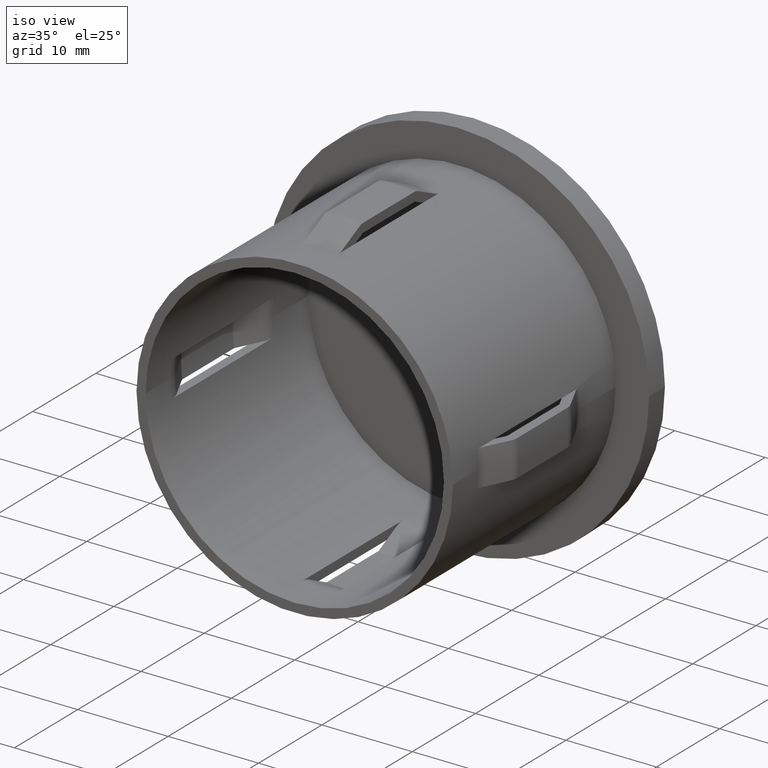
[diagram: clean part render]
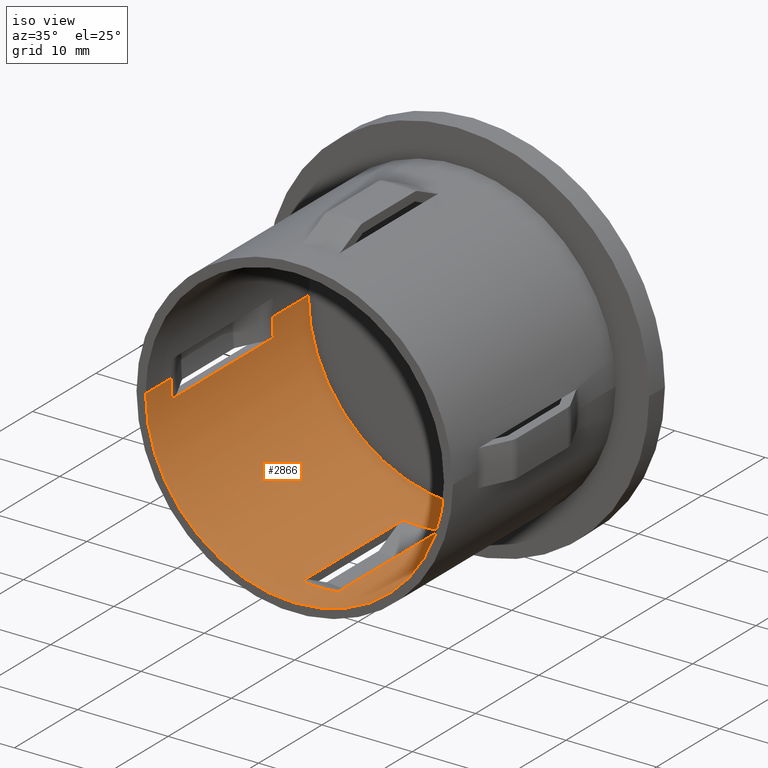
[diagram: same view with one face highlighted and labeled with its STEP entity id]
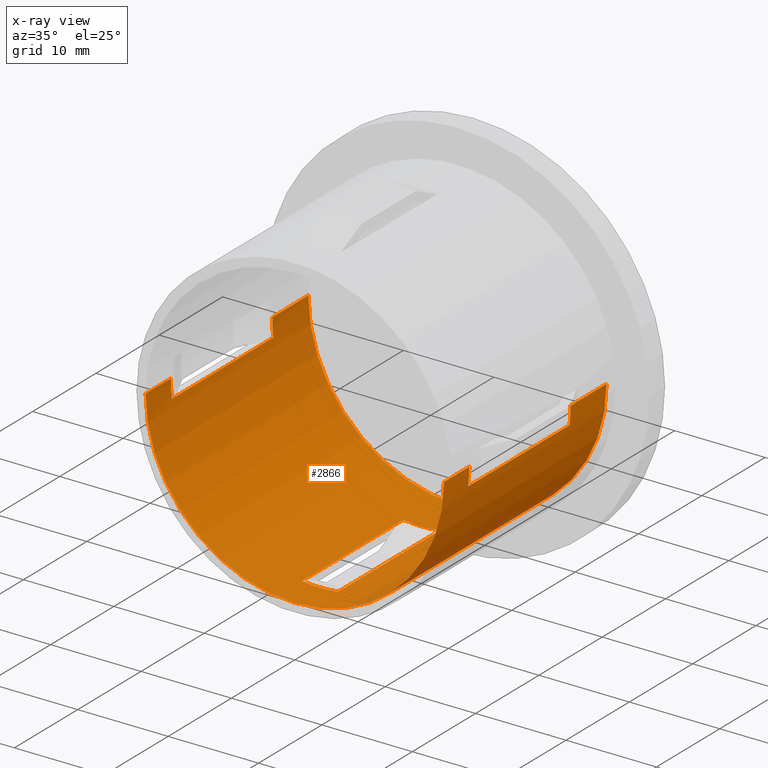
[diagram: x-ray of the same camera — body ghosted, the highlighted face saturated]
A machine part, iso view. The second image highlights one B-rep face of the part: STEP entity #2866.
The next image is the same camera in x-ray: the body ghosted, the highlighted face saturated — about 0% of this face is hidden behind the body in this view.
In plain terms, the highlighted cylindrical surface (partial cylindrical patch) has radius 16.5 mm, axis along (-0, 1, -0).
Its self-contained STEP definition (entity closure, byte-faithful):
#119 = VERTEX_POINT ( 'NONE', #7602 ) ;
#134 = ORIENTED_EDGE ( 'NONE', *, *, #6629, .T. ) ;
#135 = VECTOR ( 'NONE', #7212, 1000.000000000000000 ) ;
#142 = AXIS2_PLACEMENT_3D ( 'NONE', #4203, #6331, #5242 ) ;
#244 = CARTESIAN_POINT ( 'NONE',  ( -16.37833935415919800, 3.999999999999994200, -1.999999999999999600 ) ) ;
#255 = VERTEX_POINT ( 'NONE', #12263 ) ;
#303 = ORIENTED_EDGE ( 'NONE', *, *, #10717, .T. ) ;
#552 = ORIENTED_EDGE ( 'NONE', *, *, #8634, .F. ) ;
#663 = DIRECTION ( 'NONE',  ( -1.714505518806297100E-016, 1.000000000000000000, -0.0000000000000000000 ) ) ;
#673 = DIRECTION ( 'NONE',  ( -1.714505518806297100E-016, 1.000000000000000000, -0.0000000000000000000 ) ) ;
#878 = ORIENTED_EDGE ( 'NONE', *, *, #1336, .F. ) ;
#889 = AXIS2_PLACEMENT_3D ( 'NONE', #4526, #5159, #12366 ) ;
#1070 = LINE ( 'NONE', #1800, #11099 ) ;
#1089 = ORIENTED_EDGE ( 'NONE', *, *, #12713, .F. ) ;
#1137 = VERTEX_POINT ( 'NONE', #10952 ) ;
#1206 = DIRECTION ( 'NONE',  ( -1.000000000000000000, -2.102695122396129400E-016, 0.0000000000000000000 ) ) ;
#1296 = CARTESIAN_POINT ( 'NONE',  ( 16.50000000000000000, 28.20000000000000300, 2.020667218593133100E-015 ) ) ;
#1336 = EDGE_CURVE ( 'NONE', #6978, #5798, #7326, .T. ) ;
#1408 = VERTEX_POINT ( 'NONE', #8071 ) ;
#1449 = ORIENTED_EDGE ( 'NONE', *, *, #9260, .T. ) ;
#1570 = LINE ( 'NONE', #8740, #10137 ) ;
#1788 = EDGE_LOOP ( 'NONE', ( #3195, #6450, #1089, #6774 ) ) ;
#1800 = CARTESIAN_POINT ( 'NONE',  ( 2.000000000000004400, 47.45815458154230300, -16.37833935415919800 ) ) ;
#1827 = CARTESIAN_POINT ( 'NONE',  ( 2.000000000000006700, 19.99999999999999300, -16.37833935415920200 ) ) ;
#1865 = VECTOR ( 'NONE', #3386, 1000.000000000000000 ) ;
#2106 = ORIENTED_EDGE ( 'NONE', *, *, #6505, .F. ) ;
#2117 = DIRECTION ( 'NONE',  ( -1.714505518806297100E-016, 1.000000000000000000, -0.0000000000000000000 ) ) ;
#2129 = CARTESIAN_POINT ( 'NONE',  ( 1.160965165591693700E-015, 19.99999999999999300, 0.0000000000000000000 ) ) ;
#2197 = CIRCLE ( 'NONE', #11497, 16.50000000000000000 ) ;
#2241 = AXIS2_PLACEMENT_3D ( 'NONE', #2129, #12365, #1206 ) ;
#2331 = VERTEX_POINT ( 'NONE', #5213 ) ;
#2413 = ORIENTED_EDGE ( 'NONE', *, *, #6557, .F. ) ;
#2486 = VECTOR ( 'NONE', #8891, 1000.000000000000000 ) ;
#2738 = VERTEX_POINT ( 'NONE', #13136 ) ;
#2866 = ADVANCED_FACE ( 'NONE', ( #11141, #12899 ), #7084, .F. ) ;
#3052 = VERTEX_POINT ( 'NONE', #11652 ) ;
#3195 = ORIENTED_EDGE ( 'NONE', *, *, #5649, .T. ) ;
#3386 = DIRECTION ( 'NONE',  ( 0.0000000000000000000, -1.000000000000000000, 0.0000000000000000000 ) ) ;
#3605 = DIRECTION ( 'NONE',  ( -1.714505518806297100E-016, 1.000000000000000000, -0.0000000000000000000 ) ) ;
#3609 = CIRCLE ( 'NONE', #9114, 16.49999999999999600 ) ;
#3727 = ORIENTED_EDGE ( 'NONE', *, *, #10232, .T. ) ;
#3903 = EDGE_CURVE ( 'NONE', #3052, #9342, #1570, .T. ) ;
#4051 = CARTESIAN_POINT ( 'NONE',  ( -16.37833935415919500, 47.45815458154230300, -2.000000000000000000 ) ) ;
#4203 = CARTESIAN_POINT ( 'NONE',  ( 1.160965165591693700E-015, 19.99999999999999300, 0.0000000000000000000 ) ) ;
#4310 = CIRCLE ( 'NONE', #2241, 16.50000000000000400 ) ;
#4513 = VERTEX_POINT ( 'NONE', #12123 ) ;
#4526 = CARTESIAN_POINT ( 'NONE',  ( 3.904173995681768100E-015, 3.999999999999996400, 0.0000000000000000000 ) ) ;
#4572 = CIRCLE ( 'NONE', #6102, 16.50000000000000000 ) ;
#4583 = CIRCLE ( 'NONE', #5864, 16.50000000000000000 ) ;
#4626 = VECTOR ( 'NONE', #11685, 1000.000000000000000 ) ;
#4678 = DIRECTION ( 'NONE',  ( -1.714505518806297100E-016, 1.000000000000000000, -0.0000000000000000000 ) ) ;
#4772 = CARTESIAN_POINT ( 'NONE',  ( 1.836970198721037300E-016, 25.69999999999999600, 0.0000000000000000000 ) ) ;
#4793 = CARTESIAN_POINT ( 'NONE',  ( -16.50000000000000000, 28.19999999999999600, 0.0000000000000000000 ) ) ;
#4810 = AXIS2_PLACEMENT_3D ( 'NONE', #10513, #6506, #6540 ) ;
#4841 = ORIENTED_EDGE ( 'NONE', *, *, #9879, .F. ) ;
#4964 = LINE ( 'NONE', #1296, #4626 ) ;
#5159 = DIRECTION ( 'NONE',  ( -1.714505518806297100E-016, 1.000000000000000000, -0.0000000000000000000 ) ) ;
#5213 = CARTESIAN_POINT ( 'NONE',  ( 16.50000000000000400, 3.999999999999999100, 2.020667218593133500E-015 ) ) ;
#5230 = CARTESIAN_POINT ( 'NONE',  ( 1.160965165591693700E-015, 19.99999999999999300, 0.0000000000000000000 ) ) ;
#5242 = DIRECTION ( 'NONE',  ( -1.000000000000000000, -2.102695122396129400E-016, 0.0000000000000000000 ) ) ;
#5254 = AXIS2_PLACEMENT_3D ( 'NONE', #5230, #2117, #10366 ) ;
#5412 = VECTOR ( 'NONE', #4678, 1000.000000000000000 ) ;
#5638 = ORIENTED_EDGE ( 'NONE', *, *, #9880, .T. ) ;
#5649 = EDGE_CURVE ( 'NONE', #10689, #2738, #1070, .T. ) ;
#5667 = VERTEX_POINT ( 'NONE', #12262 ) ;
#5798 = VERTEX_POINT ( 'NONE', #6396 ) ;
#5847 = DIRECTION ( 'NONE',  ( -1.714505518806297100E-016, 1.000000000000000000, -0.0000000000000000000 ) ) ;
#5864 = AXIS2_PLACEMENT_3D ( 'NONE', #5879, #673, #11058 ) ;
#5879 = CARTESIAN_POINT ( 'NONE',  ( 3.904173995681768100E-015, 3.999999999999996400, 0.0000000000000000000 ) ) ;
#6102 = AXIS2_PLACEMENT_3D ( 'NONE', #4772, #663, #8912 ) ;
#6331 = DIRECTION ( 'NONE',  ( -1.714505518806297100E-016, 1.000000000000000000, -0.0000000000000000000 ) ) ;
#6396 = CARTESIAN_POINT ( 'NONE',  ( 16.37833935415920500, 3.999999999999999100, -1.999999999999999600 ) ) ;
#6450 = ORIENTED_EDGE ( 'NONE', *, *, #8772, .T. ) ;
#6505 = EDGE_CURVE ( 'NONE', #1137, #3052, #4310, .T. ) ;
#6506 = DIRECTION ( 'NONE',  ( -1.714505518806297100E-016, 1.000000000000000000, -0.0000000000000000000 ) ) ;
#6540 = DIRECTION ( 'NONE',  ( -1.000000000000000000, -2.102695122396129900E-016, 0.0000000000000000000 ) ) ;
#6557 = EDGE_CURVE ( 'NONE', #4513, #6978, #6876, .T. ) ;
#6629 = EDGE_CURVE ( 'NONE', #10013, #2331, #4964, .T. ) ;
#6774 = ORIENTED_EDGE ( 'NONE', *, *, #13135, .F. ) ;
#6876 = CIRCLE ( 'NONE', #142, 16.50000000000000400 ) ;
#6978 = VERTEX_POINT ( 'NONE', #8150 ) ;
#7019 = LINE ( 'NONE', #7769, #5412 ) ;
#7084 = CYLINDRICAL_SURFACE ( 'NONE', #4810, 16.50000000000000000 ) ;
#7139 = CARTESIAN_POINT ( 'NONE',  ( -1.999999999999996700, 47.45815458154230300, -16.37833935415919800 ) ) ;
#7212 = DIRECTION ( 'NONE',  ( 0.0000000000000000000, -1.000000000000000000, 0.0000000000000000000 ) ) ;
#7326 = LINE ( 'NONE', #9477, #1865 ) ;
#7355 = EDGE_CURVE ( 'NONE', #2331, #5798, #2197, .T. ) ;
#7602 = CARTESIAN_POINT ( 'NONE',  ( -16.49999999999999300, -6.298381057984003800E-015, 0.0000000000000000000 ) ) ;
#7769 = CARTESIAN_POINT ( 'NONE',  ( 16.50000000000000000, 28.20000000000000300, 2.020667218593133100E-015 ) ) ;
#7827 = DIRECTION ( 'NONE',  ( -1.000000000000000000, -1.714505518806297100E-016, 0.0000000000000000000 ) ) ;
#8071 = CARTESIAN_POINT ( 'NONE',  ( -16.49999999999999600, 3.999999999999994200, 0.0000000000000000000 ) ) ;
#8150 = CARTESIAN_POINT ( 'NONE',  ( 16.37833935415920200, 20.00000000000000400, -2.000000000000000000 ) ) ;
#8160 = DIRECTION ( 'NONE',  ( -1.000000000000000000, -1.577021341797097300E-016, 0.0000000000000000000 ) ) ;
#8215 = DIRECTION ( 'NONE',  ( 0.0000000000000000000, -1.000000000000000000, 0.0000000000000000000 ) ) ;
#8568 = ORIENTED_EDGE ( 'NONE', *, *, #7355, .T. ) ;
#8634 = EDGE_CURVE ( 'NONE', #119, #1408, #12028, .T. ) ;
#8700 = CARTESIAN_POINT ( 'NONE',  ( -1.999999999999996700, 20.00000000000000000, -16.37833935415919800 ) ) ;
#8740 = CARTESIAN_POINT ( 'NONE',  ( -16.50000000000000000, 28.19999999999999600, 0.0000000000000000000 ) ) ;
#8772 = EDGE_CURVE ( 'NONE', #2738, #5667, #11063, .T. ) ;
#8891 = DIRECTION ( 'NONE',  ( -1.714505518806297100E-016, 1.000000000000000000, -0.0000000000000000000 ) ) ;
#8912 = DIRECTION ( 'NONE',  ( -1.000000000000000000, -2.102695122396129900E-016, 0.0000000000000000000 ) ) ;
#9114 = AXIS2_PLACEMENT_3D ( 'NONE', #11958, #13130, #7827 ) ;
#9260 = EDGE_CURVE ( 'NONE', #4513, #255, #7019, .T. ) ;
#9342 = VERTEX_POINT ( 'NONE', #11893 ) ;
#9477 = CARTESIAN_POINT ( 'NONE',  ( 16.37833935415920200, 47.45815458154230300, -2.000000000000000000 ) ) ;
#9581 = EDGE_LOOP ( 'NONE', ( #4841, #134, #8568, #878, #2413, #1449, #3727, #11307, #2106, #303, #5638, #552 ) ) ;
#9603 = CARTESIAN_POINT ( 'NONE',  ( 16.50000000000000000, -6.405128459232243400E-016, 2.020667218593133100E-015 ) ) ;
#9690 = LINE ( 'NONE', #7139, #135 ) ;
#9856 = VERTEX_POINT ( 'NONE', #8700 ) ;
#9879 = EDGE_CURVE ( 'NONE', #10013, #119, #3609, .T. ) ;
#9880 = EDGE_CURVE ( 'NONE', #10768, #1408, #4583, .T. ) ;
#10013 = VERTEX_POINT ( 'NONE', #9603 ) ;
#10137 = VECTOR ( 'NONE', #3605, 1000.000000000000000 ) ;
#10232 = EDGE_CURVE ( 'NONE', #255, #9342, #4572, .T. ) ;
#10366 = DIRECTION ( 'NONE',  ( -1.000000000000000000, -2.102695122396129400E-016, 0.0000000000000000000 ) ) ;
#10513 = CARTESIAN_POINT ( 'NONE',  ( -2.449293598294708900E-016, 28.19999999999999900, 0.0000000000000000000 ) ) ;
#10542 = VECTOR ( 'NONE', #8215, 1000.000000000000000 ) ;
#10689 = VERTEX_POINT ( 'NONE', #1827 ) ;
#10717 = EDGE_CURVE ( 'NONE', #1137, #10768, #13287, .T. ) ;
#10768 = VERTEX_POINT ( 'NONE', #244 ) ;
#10782 = CARTESIAN_POINT ( 'NONE',  ( 3.904173995681768100E-015, 3.999999999999996400, 0.0000000000000000000 ) ) ;
#10952 = CARTESIAN_POINT ( 'NONE',  ( -16.37833935415920500, 19.99999999999998900, -2.000000000000000400 ) ) ;
#11058 = DIRECTION ( 'NONE',  ( -1.000000000000000000, -1.577021341797097300E-016, 0.0000000000000000000 ) ) ;
#11063 = CIRCLE ( 'NONE', #889, 16.50000000000000000 ) ;
#11099 = VECTOR ( 'NONE', #13206, 1000.000000000000000 ) ;
#11141 = FACE_BOUND ( 'NONE', #1788, .T. ) ;
#11307 = ORIENTED_EDGE ( 'NONE', *, *, #3903, .F. ) ;
#11497 = AXIS2_PLACEMENT_3D ( 'NONE', #10782, #5847, #8160 ) ;
#11652 = CARTESIAN_POINT ( 'NONE',  ( -16.50000000000000400, 19.99999999999998900, 0.0000000000000000000 ) ) ;
#11685 = DIRECTION ( 'NONE',  ( -1.714505518806297100E-016, 1.000000000000000000, -0.0000000000000000000 ) ) ;
#11893 = CARTESIAN_POINT ( 'NONE',  ( -16.50000000000000000, 25.69999999999999200, 0.0000000000000000000 ) ) ;
#11958 = CARTESIAN_POINT ( 'NONE',  ( 4.589976203204287100E-015, -3.469446951953614200E-015, 0.0000000000000000000 ) ) ;
#12028 = LINE ( 'NONE', #4793, #2486 ) ;
#12123 = CARTESIAN_POINT ( 'NONE',  ( 16.50000000000000400, 19.99999999999999600, 2.020667218593133500E-015 ) ) ;
#12262 = CARTESIAN_POINT ( 'NONE',  ( -1.999999999999993600, 3.999999999999996400, -16.37833935415920200 ) ) ;
#12263 = CARTESIAN_POINT ( 'NONE',  ( 16.50000000000000000, 25.69999999999999900, 2.020667218593133100E-015 ) ) ;
#12365 = DIRECTION ( 'NONE',  ( -1.714505518806297100E-016, 1.000000000000000000, -0.0000000000000000000 ) ) ;
#12366 = DIRECTION ( 'NONE',  ( -1.000000000000000000, -1.577021341797097300E-016, 0.0000000000000000000 ) ) ;
#12436 = CIRCLE ( 'NONE', #5254, 16.50000000000000400 ) ;
#12713 = EDGE_CURVE ( 'NONE', #9856, #5667, #9690, .T. ) ;
#12899 = FACE_OUTER_BOUND ( 'NONE', #9581, .T. ) ;
#13130 = DIRECTION ( 'NONE',  ( -1.714505518806297100E-016, 1.000000000000000000, -0.0000000000000000000 ) ) ;
#13135 = EDGE_CURVE ( 'NONE', #10689, #9856, #12436, .T. ) ;
#13136 = CARTESIAN_POINT ( 'NONE',  ( 2.000000000000006700, 3.999999999999996400, -16.37833935415920200 ) ) ;
#13206 = DIRECTION ( 'NONE',  ( 0.0000000000000000000, -1.000000000000000000, 0.0000000000000000000 ) ) ;
#13287 = LINE ( 'NONE', #4051, #10542 ) ;